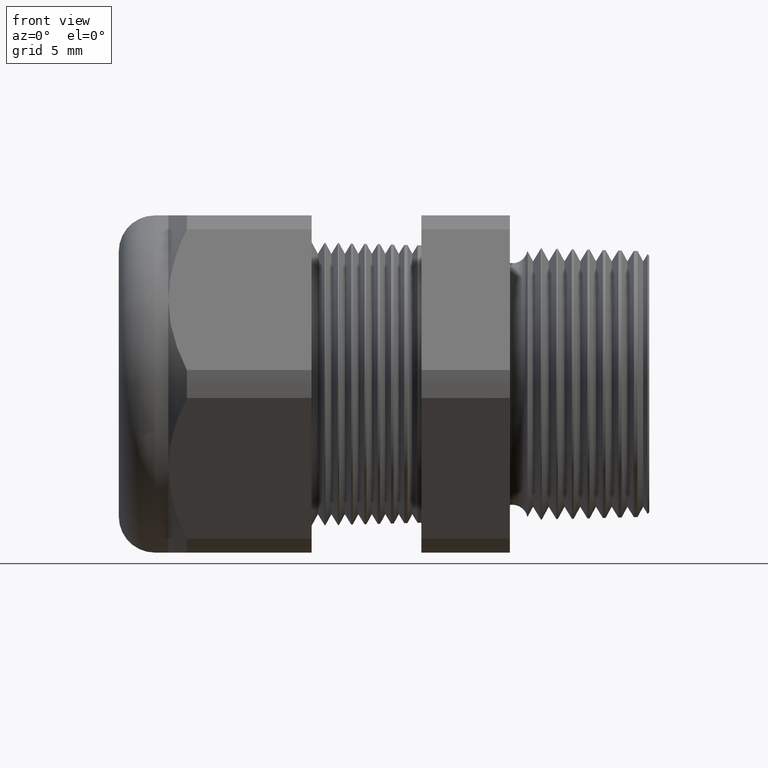
[diagram: clean part render]
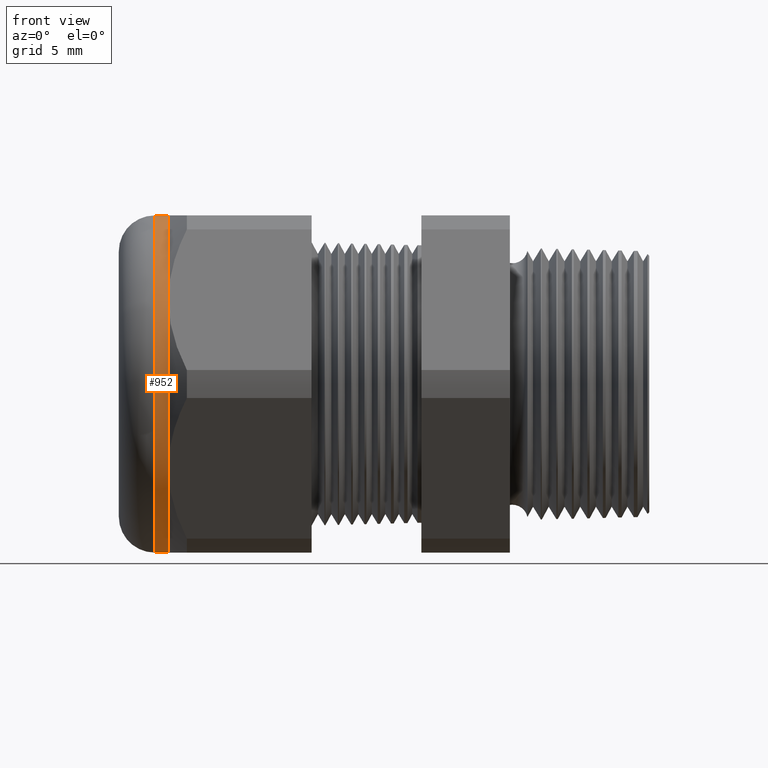
[diagram: same view with one face highlighted and labeled with its STEP entity id]
A machine part, front view. The second image highlights one B-rep face of the part: STEP entity #952.
In plain terms, the highlighted cylindrical surface (partial cylindrical patch) has radius 9.525 mm, axis along (1, 0, 0).
Its self-contained STEP definition (entity closure, byte-faithful):
#332 = VERTEX_POINT ( 'NONE', #2115 ) ;
#763 = VERTEX_POINT ( 'NONE', #2939 ) ;
#879 = ORIENTED_EDGE ( 'NONE', *, *, #1490, .T. ) ;
#880 = ORIENTED_EDGE ( 'NONE', *, *, #881, .F. ) ;
#881 = EDGE_CURVE ( 'NONE', #763, #1488, #3178, .T. ) ;
#882 = ORIENTED_EDGE ( 'NONE', *, *, #883, .F. ) ;
#883 = EDGE_CURVE ( 'NONE', #332, #763, #3173, .T. ) ;
#884 = ORIENTED_EDGE ( 'NONE', *, *, #885, .F. ) ;
#885 = EDGE_CURVE ( 'NONE', #1479, #332, #3168, .T. ) ;
#952 = ADVANCED_FACE ( 'NONE', ( #3311 ), #3306, .T. ) ;
#953 = EDGE_LOOP ( 'NONE', ( #954, #955, #879, #880, #882, #884 ) ) ;
#954 = ORIENTED_EDGE ( 'NONE', *, *, #1478, .F. ) ;
#955 = ORIENTED_EDGE ( 'NONE', *, *, #956, .T. ) ;
#956 = EDGE_CURVE ( 'NONE', #1410, #1409, #3300, .T. ) ;
#1409 = VERTEX_POINT ( 'NONE', #4000 ) ;
#1410 = VERTEX_POINT ( 'NONE', #3999 ) ;
#1478 = EDGE_CURVE ( 'NONE', #1410, #1479, #4147, .T. ) ;
#1479 = VERTEX_POINT ( 'NONE', #4138 ) ;
#1488 = VERTEX_POINT ( 'NONE', #4120 ) ;
#1490 = EDGE_CURVE ( 'NONE', #1409, #1488, #4119, .T. ) ;
#2115 = CARTESIAN_POINT ( 'NONE',  ( -1.069763779527559200, -0.3247595264191646700, 0.1875000000000000600 ) ) ;
#2939 = CARTESIAN_POINT ( 'NONE',  ( -1.069763779527559200, -0.3247595264191645600, -0.1875000000000001900 ) ) ;
#3164 = DIRECTION ( 'NONE',  ( 0.0000000000000000000, 0.0000000000000000000, -1.000000000000000000 ) ) ;
#3165 = DIRECTION ( 'NONE',  ( 1.000000000000000000, 0.0000000000000000000, 0.0000000000000000000 ) ) ;
#3166 = CARTESIAN_POINT ( 'NONE',  ( -1.069763779527559000, 0.0000000000000000000, 0.0000000000000000000 ) ) ;
#3167 = AXIS2_PLACEMENT_3D ( 'NONE', #3166, #3165, #3164 ) ;
#3168 = CIRCLE ( 'NONE', #3167, 0.3750000000000001100 ) ;
#3169 = DIRECTION ( 'NONE',  ( 0.0000000000000000000, 0.0000000000000000000, -1.000000000000000000 ) ) ;
#3170 = DIRECTION ( 'NONE',  ( 1.000000000000000000, 0.0000000000000000000, 0.0000000000000000000 ) ) ;
#3171 = CARTESIAN_POINT ( 'NONE',  ( -1.069763779527559000, 0.0000000000000000000, 0.0000000000000000000 ) ) ;
#3172 = AXIS2_PLACEMENT_3D ( 'NONE', #3171, #3170, #3169 ) ;
#3173 = CIRCLE ( 'NONE', #3172, 0.3750000000000001100 ) ;
#3174 = DIRECTION ( 'NONE',  ( 0.0000000000000000000, 0.0000000000000000000, -1.000000000000000000 ) ) ;
#3175 = DIRECTION ( 'NONE',  ( 1.000000000000000000, 0.0000000000000000000, 0.0000000000000000000 ) ) ;
#3176 = CARTESIAN_POINT ( 'NONE',  ( -1.069763779527559000, 0.0000000000000000000, 0.0000000000000000000 ) ) ;
#3177 = AXIS2_PLACEMENT_3D ( 'NONE', #3176, #3175, #3174 ) ;
#3178 = CIRCLE ( 'NONE', #3177, 0.3750000000000001100 ) ;
#3297 = DIRECTION ( 'NONE',  ( 0.0000000000000000000, 0.0000000000000000000, 1.000000000000000000 ) ) ;
#3298 = DIRECTION ( 'NONE',  ( 1.000000000000000000, 0.0000000000000000000, 0.0000000000000000000 ) ) ;
#3299 = AXIS2_PLACEMENT_3D ( 'NONE', #3305, #3298, #3297 ) ;
#3300 = CIRCLE ( 'NONE', #3299, 0.3750000000000001100 ) ;
#3301 = DIRECTION ( 'NONE',  ( 0.0000000000000000000, 0.0000000000000000000, -1.000000000000000000 ) ) ;
#3302 = DIRECTION ( 'NONE',  ( 1.000000000000000000, 0.0000000000000000000, 0.0000000000000000000 ) ) ;
#3303 = CARTESIAN_POINT ( 'NONE',  ( 0.0000000000000000000, 0.0000000000000000000, 0.0000000000000000000 ) ) ;
#3304 = AXIS2_PLACEMENT_3D ( 'NONE', #3303, #3302, #3301 ) ;
#3305 = CARTESIAN_POINT ( 'NONE',  ( -1.100000000000000100, 0.0000000000000000000, 0.0000000000000000000 ) ) ;
#3306 = CYLINDRICAL_SURFACE ( 'NONE', #3304, 0.3750000000000001100 ) ;
#3311 = FACE_OUTER_BOUND ( 'NONE', #953, .T. ) ;
#3999 = CARTESIAN_POINT ( 'NONE',  ( -1.100000000000000100, 4.592425496802576100E-017, 0.3750000000000001100 ) ) ;
#4000 = CARTESIAN_POINT ( 'NONE',  ( -1.100000000000000100, 0.0000000000000000000, -0.3750000000000001100 ) ) ;
#4118 = CARTESIAN_POINT ( 'NONE',  ( 0.0000000000000000000, 0.0000000000000000000, -0.3750000000000001100 ) ) ;
#4119 = LINE ( 'NONE', #4118, #4180 ) ;
#4120 = CARTESIAN_POINT ( 'NONE',  ( -1.069763779527559200, 0.0000000000000000000, -0.3750000000000001100 ) ) ;
#4138 = CARTESIAN_POINT ( 'NONE',  ( -1.069763779527559200, 0.0000000000000000000, 0.3749999999999999400 ) ) ;
#4139 = DIRECTION ( 'NONE',  ( 1.000000000000000000, 0.0000000000000000000, 0.0000000000000000000 ) ) ;
#4140 = VECTOR ( 'NONE', #4139, 39.37007874015748100 ) ;
#4141 = CARTESIAN_POINT ( 'NONE',  ( 0.0000000000000000000, 4.592425496802576100E-017, 0.3750000000000001100 ) ) ;
#4147 = LINE ( 'NONE', #4141, #4140 ) ;
#4179 = DIRECTION ( 'NONE',  ( 1.000000000000000000, 0.0000000000000000000, 0.0000000000000000000 ) ) ;
#4180 = VECTOR ( 'NONE', #4179, 39.37007874015748100 ) ;